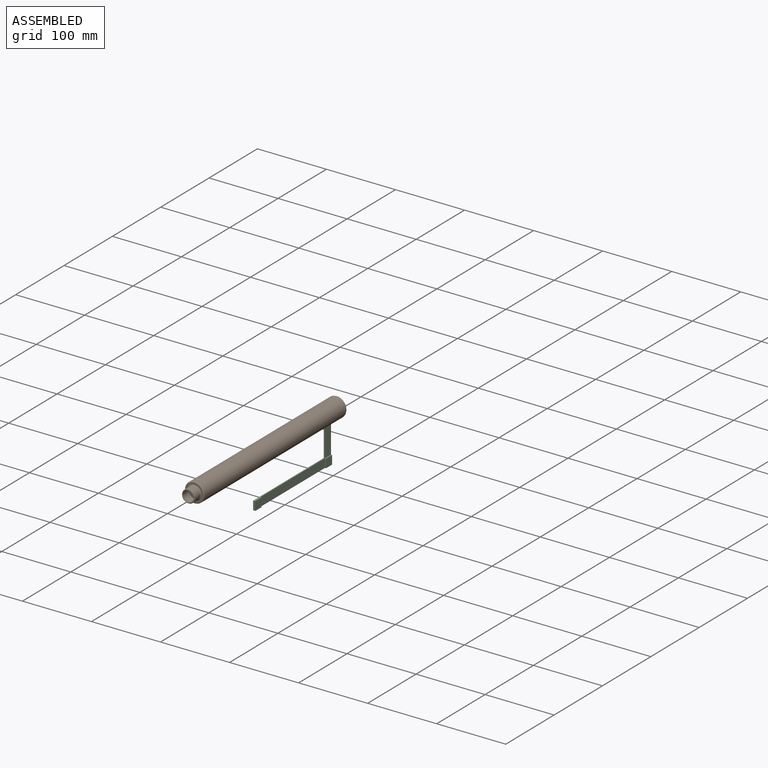
[diagram: assembled view]
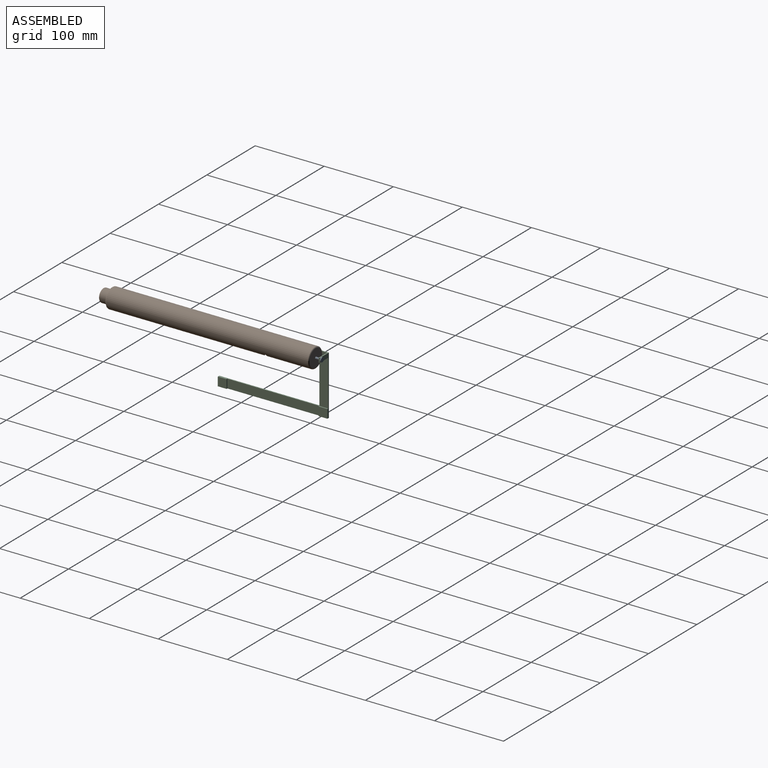
[diagram: assembled view, second angle]
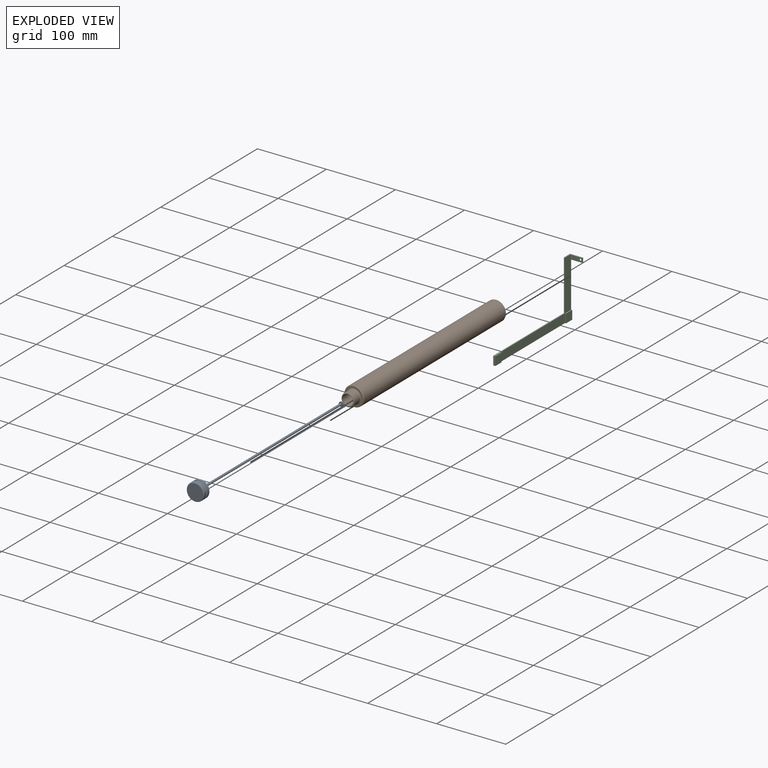
[diagram: exploded view]
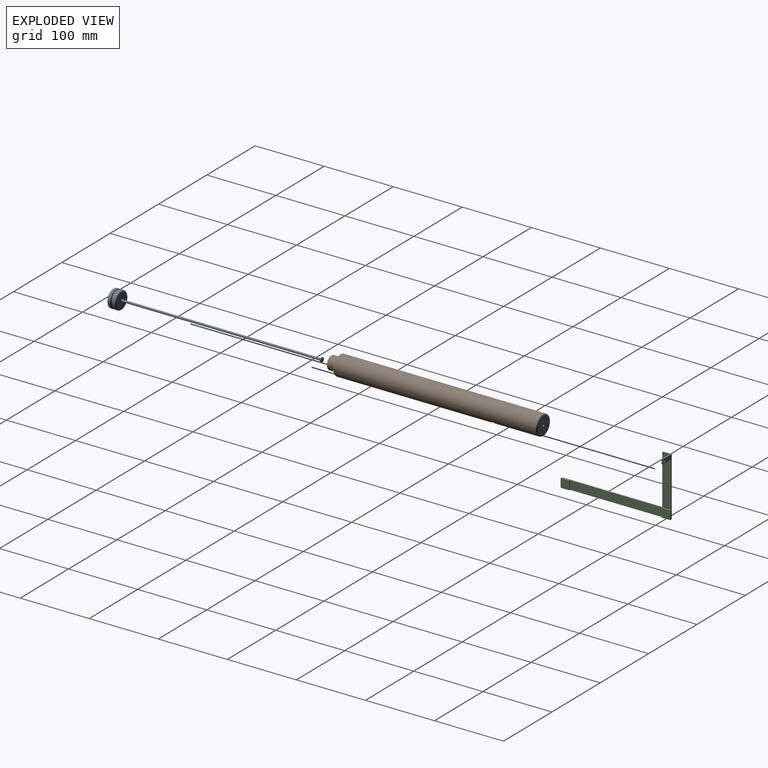
[diagram: exploded view, second angle]
ASSEMBLY  parts=3 mates=3
PART A: 11 faces, bbox 29.9x303.2x29.9 mm
  f0: cylinder r=1.59mm len=288.93mm, axis (0,-1,0), area 2881.9mm2, adj f1,f10
  f1: plane 22.23x22.23mm, normal (0,1,0), area 380mm2, adj f0,f6
  f2: cylinder r=12.7mm len=25.4mm, axis (0,-1,0), area 253.4mm2, adj f3,f6
  f3: torus R=12.7mm, axis (0,-1,0), area 366.3mm2, adj f2,f4
  f4: cylinder r=12.7mm len=25.4mm, axis (0,-1,0), area 253.4mm2, adj f3,f7
  f5: plane 22.23x22.23mm, normal (0,-1,0), area 387.9mm2, adj f7
  f6: torus R=11.11mm, axis (0,1,0), area 189.9mm2, adj f1,f2
  f7: torus R=11.11mm, axis (0,1,0), area 189.9mm2, adj f4,f5
  f8: cylinder r=3.17mm len=6.35mm, axis (0,-1,0), area 31.7mm2, adj f9,f10
  f9: plane 6.35x6.35mm, normal (0,1,0), area 31.7mm2, adj f8
  f10: plane 6.35x6.35mm, normal (0,-1,0), area 23.8mm2, adj f0,f8
PART B: 32 faces, bbox 30.9x308x30.9 mm
  f0: plane 25.4x25.4mm, normal (0,1,0), area 221.7mm2, adj f1,f13
  f1: cylinder r=12.7mm len=292.1mm, axis (0,1,0), area 23256.1mm2, adj f0,f2,f24,f25,f28,f29,f30,f31
  f2: plane 25.4x25.4mm, normal (0,-1,0), area 498.8mm2, adj f1,f3
  f3: cylinder r=1.59mm len=3.18mm, axis (0,1,0), area 15.8mm2, adj f2,f4
  f4: plane 25.4x25.4mm, normal (0,1,0), area 498.8mm2, adj f3,f9
  f5: cylinder r=14.29mm len=292.1mm, axis (0,1,0), area 26153.3mm2, adj f9,f10,f17,f18,f19,f20,f22,f23
  f6: plane 25.4x25.4mm, normal (0,-1,0), area 118.8mm2, adj f10,f11
  f7: cylinder r=9.53mm len=19.05mm, axis (0,1,0), area 570mm2, adj f11,f12
  f8: cylinder r=7.94mm len=15.88mm, axis (0,1,0), area 633.4mm2, adj f12,f13
  f9: torus R=12.7mm, axis (0,-1,0), area 214.8mm2, adj f4,f5
  f10: torus R=12.7mm, axis (0,-1,0), area 214.8mm2, adj f5,f6
  f11: torus R=11.11mm, axis (0,-1,0), area 158.3mm2, adj f6,f7
  f12: torus R=7.94mm, axis (0,-1,0), area 140.2mm2, adj f7,f8
  f13: torus R=9.53mm, axis (0,-1,0), area 133.4mm2, adj f0,f8
  f14: plane 10.72x5.55mm, normal (0,0.71,-0.71), area 13.3mm2, adj f19,f26,f27,f31
  f15: plane 10.27x4.99mm, normal (0,-1,0), area 8.8mm2, adj f20,f21,f27,f28
  f16: plane 4.99x0.79mm, normal (1,0,0), area 3.6mm2, adj f18,f21,f25,f26
  f17: bspline ~1x0.93mm, area 0.5mm2, adj f5,f18,f20,f21
  f18: cylinder r=0.4mm len=4.99mm, axis (0,1,0), area 3.2mm2, adj f5,f16,f17,f22
  f19: bspline ~11.03x5.83mm, area 5.2mm2, adj f5,f14,f22,f23
  f20: torus R=13.89mm, axis (0,-1,0), area 7.5mm2, adj f5,f15,f17,f23
  f21: cylinder r=0.4mm len=0.79mm, axis (0,0,-1), area 0.5mm2, adj f15,f16,f17,f24
  f22: bspline ~1.46x0.89mm, area 0.6mm2, adj f5,f18,f19,f26
  f23: bspline ~1.5x0.99mm, area 0.7mm2, adj f5,f19,f20,f27
  f24: bspline ~0.97x0.9mm, area 0.5mm2, adj f1,f21,f25,f28
  f25: cylinder r=0.4mm len=4.2mm, axis (0,1,0), area 2.6mm2, adj f1,f16,f24,f29
  f26: cylinder r=0.4mm len=1.64mm, axis (0,0.71,0.71), area 0.7mm2, adj f14,f16,f22,f29
  f27: cylinder r=0.4mm len=1.67mm, axis (-1,0,0), area 0.9mm2, adj f14,f15,f23,f30
  f28: torus R=13.1mm, axis (0,-1,0), area 6.4mm2, adj f1,f15,f24,f30
  f29: bspline ~1.31x0.92mm, area 0.8mm2, adj f1,f25,f26,f31
  f30: bspline ~1.39x1.19mm, area 1.1mm2, adj f1,f27,f28,f31
  f31: bspline ~9.72x5.29mm, area 10.7mm2, adj f1,f14,f29,f30
PART C: 18 faces, bbox 19.1x158.8x85.5 mm
  f0: plane 133.35x12.7mm, normal (-1,0,0), area 1693.5mm2, adj f7,f10,f13,f14
  f1: plane 12.7x3.18mm, normal (0,1,0), area 40.3mm2, adj f3,f7,f14,f15
  f2: plane 19.05x12.7mm, normal (0,0,1), area 47.9mm2, adj f3,f4,f5,f6,f8,f16
  f3: plane 158.75x85.5mm, normal (1,0,0), area 2940.6mm2, adj f1,f2,f5,f7,f14,f16
  f4: plane 72.8x12.7mm, normal (-1,0,0), area 914.4mm2, adj f2,f5,f6,f9,f11,f16
  f5: plane 85.5x19.05mm, normal (0,-1,0), area 258.9mm2, adj f2,f3,f4,f7,f8,f9,f11,f12
  f6: plane 17.46x6.35mm, normal (0,1,0), area 103mm2, adj f2,f4,f8,f9,f17
  f7: plane 158.75x3.18mm, normal (0,0,-1), area 292.3mm2, adj f0,f1,f3,f5,f10,f12,f13,f15
  f8: plane 6.35x1.59mm, normal (-1,0,0), area 10.1mm2, adj f2,f5,f6,f9
  f9: plane 17.46x1.59mm, normal (0,0,-1), area 27.7mm2, adj f4,f5,f6,f8
  f10: plane 12.7x1.59mm, normal (0,1,0), area 20.2mm2, adj f0,f7,f11,f12
  f11: plane 12.7x1.59mm, normal (0,0,1), area 20.2mm2, adj f4,f5,f10,f12
  f12: plane 12.7x12.7mm, normal (-1,0,0), area 161.3mm2, adj f5,f7,f10,f11
  f13: plane 12.7x1.59mm, normal (0,-1,0), area 20.2mm2, adj f0,f7,f14,f15
  f14: plane 146.05x3.18mm, normal (0,0,1), area 252mm2, adj f0,f1,f3,f13,f15,f16
  f15: plane 12.7x12.7mm, normal (-1,0,0), area 161.3mm2, adj f1,f7,f13,f14
  f16: plane 72.8x1.59mm, normal (0,1,0), area 115.6mm2, adj f2,f3,f4,f14
  f17: cylinder r=1.59mm len=3.18mm, axis (0,1,0), area 15.8mm2, adj f5,f6
PLACE A t=(0,163.51,0)mm
PLACE B t=(0,153.99,0)mm
PLACE C rot(axis=(0,0,1),180deg) t=(3.18,314.33,-82.32)mm
MATE slider C.f17 <-> A.f0  axis (0,1,0) through (0,315.91,0)mm
MATE slider B.f1 <-> C.f17  axis (0,1,0) through (0,307.97,0)mm
MATE slider A.f0 <-> B.f1  axis (0,-1,0) through (0,14.29,0)mm
